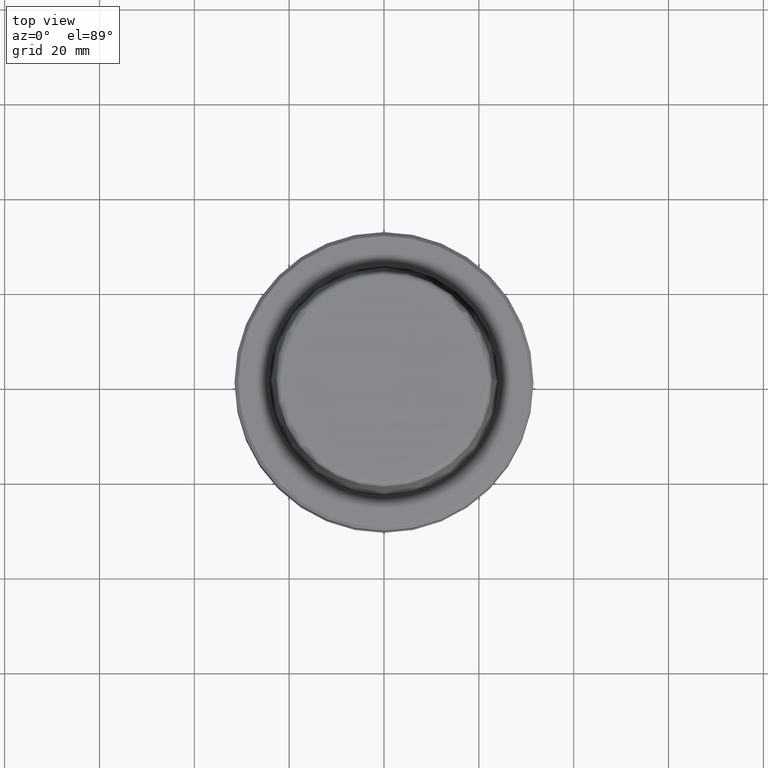
[diagram: clean part render]
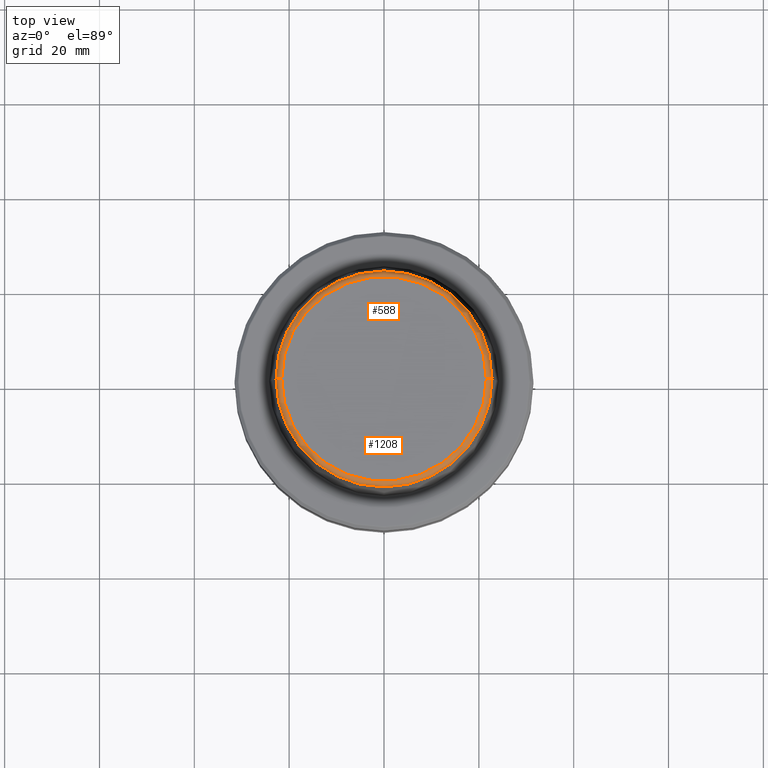
[diagram: same view with one multi-face feature highlighted, each face labeled with its STEP entity id]
A machine part, top view. The highlighted faces form ONE feature: a constant-radius fillet chain: 2 tangent blend faces with common blend radius 1.2 mm. The faces share edges in the B-rep.
Their STEP definitions:
[1] entity #588 (Torus):
#10 = VERTEX_POINT ( 'NONE', #1419 ) ;
#32 = TOROIDAL_SURFACE ( 'NONE', #1895, 21.58108272732117100, 1.200000000000003100 ) ;
#51 = CARTESIAN_POINT ( 'NONE',  ( 21.58108272732117100, 0.0000000000000000000, 31.89999999999999900 ) ) ;
#55 = AXIS2_PLACEMENT_3D ( 'NONE', #800, #2040, #487 ) ;
#103 = CIRCLE ( 'NONE', #1602, 1.200000000000003100 ) ;
#151 = ORIENTED_EDGE ( 'NONE', *, *, #460, .F. ) ;
#181 = ORIENTED_EDGE ( 'NONE', *, *, #604, .F. ) ;
#184 = CARTESIAN_POINT ( 'NONE',  ( 21.58108272732117100, 0.0000000000000000000, 30.69999999999999200 ) ) ;
#193 = CARTESIAN_POINT ( 'NONE',  ( 0.0000000000000000000, 0.0000000000000000000, 30.76004333261571900 ) ) ;
#211 = CIRCLE ( 'NONE', #809, 22.77957961851797100 ) ;
#309 = CIRCLE ( 'NONE', #55, 21.58108272732117100 ) ;
#330 = CARTESIAN_POINT ( 'NONE',  ( -21.58108272732117100, 2.642920388414810300E-015, 30.69999999999999200 ) ) ;
#371 = DIRECTION ( 'NONE',  ( 1.000000000000000000, 0.0000000000000000000, 0.0000000000000000000 ) ) ;
#408 = VERTEX_POINT ( 'NONE', #51 ) ;
#459 = EDGE_LOOP ( 'NONE', ( #1183, #887, #181, #151 ) ) ;
#460 = EDGE_CURVE ( 'NONE', #1084, #408, #641, .T. ) ;
#481 = DIRECTION ( 'NONE',  ( -1.000000000000000000, 1.224646799147353200E-016, 0.0000000000000000000 ) ) ;
#487 = DIRECTION ( 'NONE',  ( 1.000000000000000000, 0.0000000000000000000, 0.0000000000000000000 ) ) ;
#527 = DIRECTION ( 'NONE',  ( 0.0000000000000000000, 0.0000000000000000000, -1.000000000000000000 ) ) ;
#535 = AXIS2_PLACEMENT_3D ( 'NONE', #184, #1137, #527 ) ;
#588 = ADVANCED_FACE ( 'NONE', ( #784 ), #32, .T. ) ;
#604 = EDGE_CURVE ( 'NONE', #408, #10, #309, .T. ) ;
#641 = CIRCLE ( 'NONE', #535, 1.200000000000003100 ) ;
#784 = FACE_OUTER_BOUND ( 'NONE', #459, .T. ) ;
#800 = CARTESIAN_POINT ( 'NONE',  ( 0.0000000000000000000, 0.0000000000000000000, 31.89999999999999900 ) ) ;
#809 = AXIS2_PLACEMENT_3D ( 'NONE', #193, #1299, #371 ) ;
#887 = ORIENTED_EDGE ( 'NONE', *, *, #1797, .T. ) ;
#902 = CARTESIAN_POINT ( 'NONE',  ( -22.77957961851797100, 0.0000000000000000000, 30.76004333261571900 ) ) ;
#1084 = VERTEX_POINT ( 'NONE', #1912 ) ;
#1089 = DIRECTION ( 'NONE',  ( -0.0000000000000000000, -0.0000000000000000000, 1.000000000000000000 ) ) ;
#1137 = DIRECTION ( 'NONE',  ( 0.0000000000000000000, -1.000000000000000000, 0.0000000000000000000 ) ) ;
#1168 = EDGE_CURVE ( 'NONE', #1084, #1639, #211, .T. ) ;
#1183 = ORIENTED_EDGE ( 'NONE', *, *, #1168, .T. ) ;
#1299 = DIRECTION ( 'NONE',  ( -0.0000000000000000000, -0.0000000000000000000, 1.000000000000000000 ) ) ;
#1410 = DIRECTION ( 'NONE',  ( 1.224646799147353200E-016, 1.000000000000000000, 0.0000000000000000000 ) ) ;
#1419 = CARTESIAN_POINT ( 'NONE',  ( -21.58108272732117100, 2.716307157494421400E-015, 31.89999999999999900 ) ) ;
#1564 = DIRECTION ( 'NONE',  ( 1.000000000000000000, 0.0000000000000000000, 0.0000000000000000000 ) ) ;
#1602 = AXIS2_PLACEMENT_3D ( 'NONE', #330, #1410, #481 ) ;
#1639 = VERTEX_POINT ( 'NONE', #902 ) ;
#1724 = CARTESIAN_POINT ( 'NONE',  ( 0.0000000000000000000, 0.0000000000000000000, 30.69999999999999200 ) ) ;
#1797 = EDGE_CURVE ( 'NONE', #1639, #10, #103, .T. ) ;
#1895 = AXIS2_PLACEMENT_3D ( 'NONE', #1724, #1089, #1564 ) ;
#1912 = CARTESIAN_POINT ( 'NONE',  ( 22.77957961851797100, 2.874852597157249900E-015, 30.76004333261571900 ) ) ;
#2040 = DIRECTION ( 'NONE',  ( -0.0000000000000000000, -0.0000000000000000000, 1.000000000000000000 ) ) ;
[2] entity #1208 (Torus):
#10 = VERTEX_POINT ( 'NONE', #1419 ) ;
#51 = CARTESIAN_POINT ( 'NONE',  ( 21.58108272732117100, 0.0000000000000000000, 31.89999999999999900 ) ) ;
#62 = DIRECTION ( 'NONE',  ( -0.0000000000000000000, -0.0000000000000000000, 1.000000000000000000 ) ) ;
#92 = DIRECTION ( 'NONE',  ( 1.000000000000000000, 0.0000000000000000000, 0.0000000000000000000 ) ) ;
#103 = CIRCLE ( 'NONE', #1602, 1.200000000000003100 ) ;
#108 = TOROIDAL_SURFACE ( 'NONE', #1531, 21.58108272732117100, 1.200000000000003100 ) ;
#184 = CARTESIAN_POINT ( 'NONE',  ( 21.58108272732117100, 0.0000000000000000000, 30.69999999999999200 ) ) ;
#330 = CARTESIAN_POINT ( 'NONE',  ( -21.58108272732117100, 2.642920388414810300E-015, 30.69999999999999200 ) ) ;
#361 = EDGE_CURVE ( 'NONE', #10, #408, #872, .T. ) ;
#408 = VERTEX_POINT ( 'NONE', #51 ) ;
#460 = EDGE_CURVE ( 'NONE', #1084, #408, #641, .T. ) ;
#481 = DIRECTION ( 'NONE',  ( -1.000000000000000000, 1.224646799147353200E-016, 0.0000000000000000000 ) ) ;
#510 = EDGE_CURVE ( 'NONE', #1639, #1084, #1522, .T. ) ;
#527 = DIRECTION ( 'NONE',  ( 0.0000000000000000000, 0.0000000000000000000, -1.000000000000000000 ) ) ;
#535 = AXIS2_PLACEMENT_3D ( 'NONE', #184, #1137, #527 ) ;
#549 = DIRECTION ( 'NONE',  ( 1.000000000000000000, 0.0000000000000000000, 0.0000000000000000000 ) ) ;
#584 = CARTESIAN_POINT ( 'NONE',  ( 0.0000000000000000000, 0.0000000000000000000, 31.89999999999999900 ) ) ;
#641 = CIRCLE ( 'NONE', #535, 1.200000000000003100 ) ;
#690 = ORIENTED_EDGE ( 'NONE', *, *, #510, .T. ) ;
#816 = ORIENTED_EDGE ( 'NONE', *, *, #361, .F. ) ;
#872 = CIRCLE ( 'NONE', #986, 21.58108272732117100 ) ;
#902 = CARTESIAN_POINT ( 'NONE',  ( -22.77957961851797100, 0.0000000000000000000, 30.76004333261571900 ) ) ;
#951 = AXIS2_PLACEMENT_3D ( 'NONE', #1661, #62, #549 ) ;
#986 = AXIS2_PLACEMENT_3D ( 'NONE', #584, #1055, #92 ) ;
#1055 = DIRECTION ( 'NONE',  ( -0.0000000000000000000, -0.0000000000000000000, 1.000000000000000000 ) ) ;
#1084 = VERTEX_POINT ( 'NONE', #1912 ) ;
#1137 = DIRECTION ( 'NONE',  ( 0.0000000000000000000, -1.000000000000000000, 0.0000000000000000000 ) ) ;
#1208 = ADVANCED_FACE ( 'NONE', ( #1361 ), #108, .T. ) ;
#1244 = DIRECTION ( 'NONE',  ( 1.000000000000000000, 0.0000000000000000000, 0.0000000000000000000 ) ) ;
#1333 = EDGE_LOOP ( 'NONE', ( #1921, #690, #1618, #816 ) ) ;
#1361 = FACE_OUTER_BOUND ( 'NONE', #1333, .T. ) ;
#1410 = DIRECTION ( 'NONE',  ( 1.224646799147353200E-016, 1.000000000000000000, 0.0000000000000000000 ) ) ;
#1419 = CARTESIAN_POINT ( 'NONE',  ( -21.58108272732117100, 2.716307157494421400E-015, 31.89999999999999900 ) ) ;
#1522 = CIRCLE ( 'NONE', #951, 22.77957961851797100 ) ;
#1531 = AXIS2_PLACEMENT_3D ( 'NONE', #1722, #1563, #1244 ) ;
#1563 = DIRECTION ( 'NONE',  ( -0.0000000000000000000, -0.0000000000000000000, 1.000000000000000000 ) ) ;
#1602 = AXIS2_PLACEMENT_3D ( 'NONE', #330, #1410, #481 ) ;
#1618 = ORIENTED_EDGE ( 'NONE', *, *, #460, .T. ) ;
#1639 = VERTEX_POINT ( 'NONE', #902 ) ;
#1661 = CARTESIAN_POINT ( 'NONE',  ( 0.0000000000000000000, 0.0000000000000000000, 30.76004333261571900 ) ) ;
#1722 = CARTESIAN_POINT ( 'NONE',  ( 0.0000000000000000000, 0.0000000000000000000, 30.69999999999999200 ) ) ;
#1797 = EDGE_CURVE ( 'NONE', #1639, #10, #103, .T. ) ;
#1912 = CARTESIAN_POINT ( 'NONE',  ( 22.77957961851797100, 2.874852597157249900E-015, 30.76004333261571900 ) ) ;
#1921 = ORIENTED_EDGE ( 'NONE', *, *, #1797, .F. ) ;